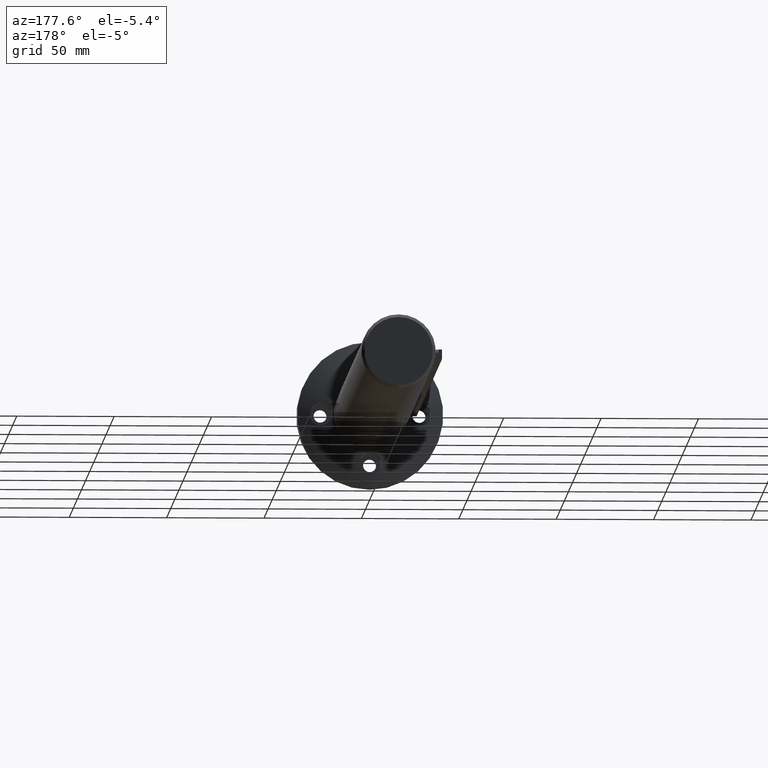
[diagram: clean part render]
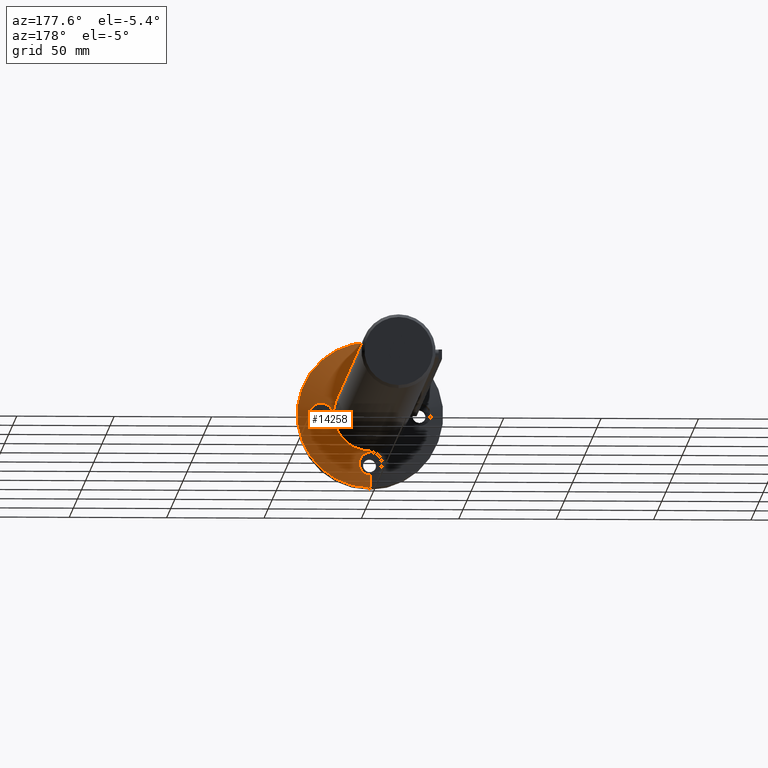
[diagram: same view with one face highlighted and labeled with its STEP entity id]
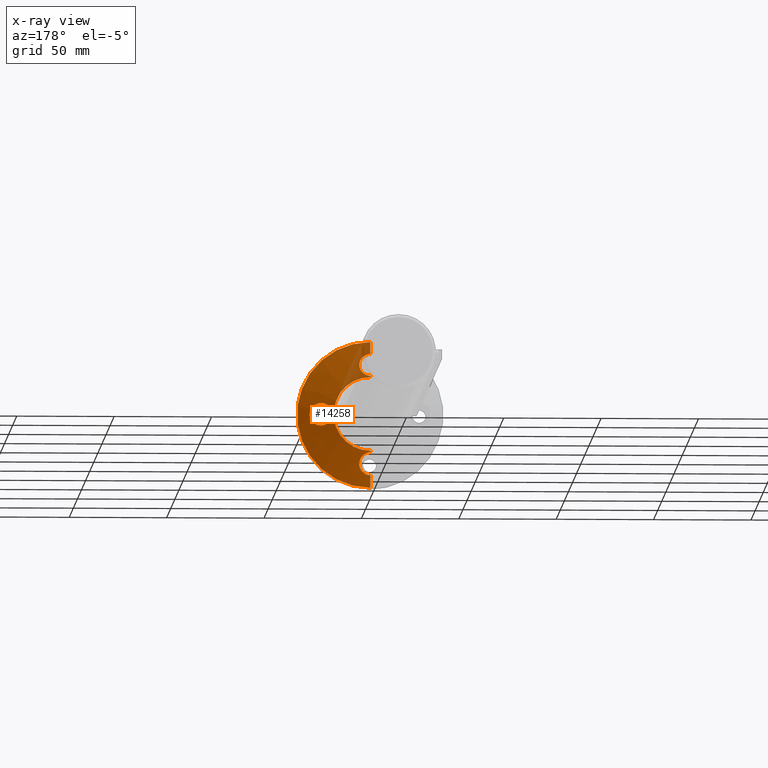
[diagram: x-ray of the same camera — body ghosted, the highlighted face saturated]
A machine part, auxiliary view. The second image highlights one B-rep face of the part: STEP entity #14258.
The next image is the same camera in x-ray: the body ghosted, the highlighted face saturated — about 9% of this face is hidden behind the body in this view.
In plain terms, the highlighted conical surface has half-angle 74.876 deg.
Its self-contained STEP definition (entity closure, byte-faithful):
#180 = CARTESIAN_POINT ( 'NONE',  ( 5.752121366705880600, 11.13348682992429200, -24.99349287536270800 ) ) ;
#495 = CARTESIAN_POINT ( 'NONE',  ( 31.11588778315874000, 9.653404444380552000, -0.7665545079161173400 ) ) ;
#557 = CARTESIAN_POINT ( 'NONE',  ( 30.37469805003396300, 9.818383659386537200, -2.917477962158198800 ) ) ;
#562 = CARTESIAN_POINT ( 'NONE',  ( 20.85786310711960200, 12.34705617384533800, 3.552988741602661500 ) ) ;
#630 = CARTESIAN_POINT ( 'NONE',  ( 19.64519202225280700, 12.75556062910140100, -0.3807822135396589100 ) ) ;
#690 = CARTESIAN_POINT ( 'NONE',  ( 24.65289151786691900, 11.22524320576565900, -5.717639886518329100 ) ) ;
#712 = EDGE_CURVE ( 'NONE', #9777, #12521, #8361, .T. ) ;
#744 = CARTESIAN_POINT ( 'NONE',  ( 23.57110559144068400, 11.52528801184982600, 5.468531129336385600 ) ) ;
#812 = CARTESIAN_POINT ( 'NONE',  ( 22.88395093715687900, 11.72381623010276800, -5.178503759099219100 ) ) ;
#949 = LINE ( 'NONE', #11947, #8793 ) ;
#1195 = DIRECTION ( 'NONE',  ( -0.0000000000000000000, -1.000000000000000000, -0.0000000000000000000 ) ) ;
#1228 = CARTESIAN_POINT ( 'NONE',  ( 5.753551299283955700, 11.08142567117042400, 25.19069178476074800 ) ) ;
#1413 = CARTESIAN_POINT ( 'NONE',  ( 2.326828918379971000E-015, 12.92990217911026100, 19.00000000000000000 ) ) ;
#1471 = DIRECTION ( 'NONE',  ( 0.0000000000000000000, 0.0000000000000000000, -1.000000000000000000 ) ) ;
#1696 = CARTESIAN_POINT ( 'NONE',  ( 5.604931779861908900, 11.38186482631871000, -24.08414015017087100 ) ) ;
#1745 = CARTESIAN_POINT ( 'NONE',  ( -1.744298769855210700E-013, 9.644937314244925700, 31.15437000000212500 ) ) ;
#1826 = CARTESIAN_POINT ( 'NONE',  ( 4.374997135130026700, 10.09696709201191600, -29.15697019807006600 ) ) ;
#1864 = EDGE_CURVE ( 'NONE', #7840, #18439, #15456, .T. ) ;
#1970 = CARTESIAN_POINT ( 'NONE',  ( 4.354389380028218100, 12.10482646065223700, -21.61961070263967200 ) ) ;
#2022 = CARTESIAN_POINT ( 'NONE',  ( 26.13812673310334100, 10.83366605880098300, 5.719024205377261100 ) ) ;
#2067 = CARTESIAN_POINT ( 'NONE',  ( 1.418599099528082900E-020, 12.75540758451566600, -19.64563000000000100 ) ) ;
#2157 = CARTESIAN_POINT ( 'NONE',  ( 21.09824536528367000, 12.26937502672081100, -3.840693119769190000 ) ) ;
#2272 = AXIS2_PLACEMENT_3D ( 'NONE', #12878, #17416, #12746 ) ;
#2297 = ORIENTED_EDGE ( 'NONE', *, *, #13890, .T. ) ;
#2339 = CARTESIAN_POINT ( 'NONE',  ( 25.39999999999990600, 11.02620744427301600, -5.754370000001026500 ) ) ;
#2818 = DIRECTION ( 'NONE',  ( 0.0000000000000000000, -0.2609090251427748100, -0.9653633930282662400 ) ) ;
#2958 = CARTESIAN_POINT ( 'NONE',  ( 2.405909194520083700E-015, 12.75540758451566600, 19.64563000000000100 ) ) ;
#3187 = CARTESIAN_POINT ( 'NONE',  ( 0.0000000000000000000, 12.92990217911026100, 0.0000000000000000000 ) ) ;
#3231 = CARTESIAN_POINT ( 'NONE',  ( 5.559856801530136400, 11.43180375883825300, -23.90492075328144800 ) ) ;
#3236 = CARTESIAN_POINT ( 'NONE',  ( 4.592425496802575200E-015, 7.929902179110256600, 37.50000000000000700 ) ) ;
#3349 = CARTESIAN_POINT ( 'NONE',  ( 27.91321917364554000, 10.39183091214263200, -5.189840867413017200 ) ) ;
#3364 = CARTESIAN_POINT ( 'NONE',  ( 1.516383248258832200, 9.689133636196436000, -30.95428067564817500 ) ) ;
#3489 = CARTESIAN_POINT ( 'NONE',  ( 25.39999999999999900, 11.02620744427304400, 5.754370000000085000 ) ) ;
#3550 = CARTESIAN_POINT ( 'NONE',  ( 30.37576376253316100, 9.818148241319129000, 2.915001988909240900 ) ) ;
#3576 = AXIS2_PLACEMENT_3D ( 'NONE', #17803, #8735, #1471 ) ;
#3615 = CARTESIAN_POINT ( 'NONE',  ( 20.24559566458732400, 12.54951331676843500, -2.586476566818950200 ) ) ;
#3675 = CARTESIAN_POINT ( 'NONE',  ( 28.87680791987174100, 10.16236954130893900, 4.600560403382208300 ) ) ;
#3677 = CARTESIAN_POINT ( 'NONE',  ( 19.96134237342280900, 12.64617442778948800, 1.889573917547891200 ) ) ;
#3733 = CARTESIAN_POINT ( 'NONE',  ( 29.94430785207256600, 9.915888250516186300, 3.535262357743014700 ) ) ;
#3802 = CARTESIAN_POINT ( 'NONE',  ( 30.77616455100281100, 9.728675268620895300, -2.060469589724757400 ) ) ;
#4163 = LINE ( 'NONE', #17742, #18247 ) ;
#4345 = CARTESIAN_POINT ( 'NONE',  ( 4.588832086139157200, 12.01156489771813400, 21.92290106165430800 ) ) ;
#4364 = EDGE_CURVE ( 'NONE', #17474, #7840, #949, .T. ) ;
#4412 = CARTESIAN_POINT ( 'NONE',  ( 4.715267445571734900, 10.20337518817701100, 28.70371138988322100 ) ) ;
#4470 = CARTESIAN_POINT ( 'NONE',  ( 5.743705289322846000, 11.13133082502850300, 25.00349460053529400 ) ) ;
#4524 = B_SPLINE_CURVE_WITH_KNOTS ( 'NONE', 3,
 ( #3489, #15750, #15884, #17343, #744, #17278, #11217, #5087, #6597, #8153, #17538, #8281, #562, #14468, #6723, #18821, #3677, #8345, #9751, #5152, #9933, #630, #11277, #12742, #5328, #3615, #15810, #19064, #2157, #18942, #12804, #14348, #17412, #812, #18999, #9809, #11461, #690, #11339, #2339 ),
 .UNSPECIFIED., .F., .F.,
 ( 4, 2, 2, 2, 2, 2, 2, 2, 2, 2, 2, 2, 2, 2, 2, 2, 2, 2, 2, 4 ),
 ( 0.02278044605392252600, 0.02392800347090952600, 0.02507556088789652700, 0.02564933959639002400, 0.02622311830488351800, 0.02737067572187051200, 0.02851823313885750600, 0.02966579055584450000, 0.03023956926433799700, 0.03081334797283149000, 0.03196090538981848800, 0.03310846280680548200, 0.03425602022379248300, 0.03540357764077947700, 0.03655113505776647100, 0.03769869247475346500, 0.03827247118324696200, 0.03884624989174045900, 0.03999380730872746000, 0.04114136472571445400 ),
 .UNSPECIFIED. ) ;
#4541 = CARTESIAN_POINT ( 'NONE',  ( 4.366142320094994900, 10.09805049839781800, 29.15304463863521500 ) ) ;
#4560 = CARTESIAN_POINT ( 'NONE',  ( 3.459627207591272700E-015, 12.92990217911026100, 19.00000000000000000 ) ) ;
#4596 = EDGE_CURVE ( 'NONE', #14779, #11967, #16382, .T. ) ;
#4752 = CARTESIAN_POINT ( 'NONE',  ( 4.603152755962620200, 10.16700010147501500, 28.85825498252901500 ) ) ;
#4768 = CARTESIAN_POINT ( 'NONE',  ( 5.388703683395808000, 11.58232158542044500, -23.37291869454105300 ) ) ;
#4827 = CARTESIAN_POINT ( 'NONE',  ( 4.615151457810871000, 10.16690945185796100, -28.85746276620313500 ) ) ;
#4883 = CARTESIAN_POINT ( 'NONE',  ( 28.71396885806361600, 10.20095552578496100, -4.708045767680188100 ) ) ;
#4898 = CARTESIAN_POINT ( 'NONE',  ( 0.3827297659195221800, 9.644937314245398200, -31.15437000000000000 ) ) ;
#5048 = EDGE_CURVE ( 'NONE', #11967, #14779, #4524, .T. ) ;
#5087 = CARTESIAN_POINT ( 'NONE',  ( 22.55786220425960300, 11.81995318017262300, 5.006989748951079700 ) ) ;
#5146 = CARTESIAN_POINT ( 'NONE',  ( 30.96605568270820500, 9.686518680858100100, 1.508837570871810700 ) ) ;
#5152 = CARTESIAN_POINT ( 'NONE',  ( 19.68569039984744900, 12.74136161533699700, 0.7778462264573586800 ) ) ;
#5162 = CARTESIAN_POINT ( 'NONE',  ( 0.7637268076666595700, 12.74212480314451700, -19.68349969016582100 ) ) ;
#5266 = CARTESIAN_POINT ( 'NONE',  ( 25.76787959193202600, 10.92923786837081600, 5.754370000000085900 ) ) ;
#5327 = CARTESIAN_POINT ( 'NONE',  ( 27.91411718648641500, 10.39161349364256600, 5.189416341458581900 ) ) ;
#5328 = CARTESIAN_POINT ( 'NONE',  ( 19.94974408141540700, 12.64994938104479900, -1.884795879016688300 ) ) ;
#5614 = VERTEX_POINT ( 'NONE', #10992 ) ;
#5736 = CARTESIAN_POINT ( 'NONE',  ( 5.463303028152002300, 11.52984146627808000, 23.55502764150032000 ) ) ;
#5797 = CARTESIAN_POINT ( 'NONE',  ( 3.831969168777085600, 12.27180134890388200, 21.09070205042166200 ) ) ;
#5863 = CARTESIAN_POINT ( 'NONE',  ( 5.196475428612324700, 10.39509998621983300, 27.89968142912265500 ) ) ;
#6035 = CARTESIAN_POINT ( 'NONE',  ( 25.39999999999999900, 11.02620744427304400, 5.754370000000085000 ) ) ;
#6065 = CARTESIAN_POINT ( 'NONE',  ( 0.7629376636027661600, 9.653275954632384500, 31.11647002445025500 ) ) ;
#6189 = CARTESIAN_POINT ( 'NONE',  ( 2.061286351244369500, 9.728740033451673600, 30.77587299745846400 ) ) ;
#6204 = CARTESIAN_POINT ( 'NONE',  ( 0.7626891619676300400, 9.653254715527754800, -31.11656585892411200 ) ) ;
#6252 = VECTOR ( 'NONE', #15060, 1000.000000000000200 ) ;
#6323 = CARTESIAN_POINT ( 'NONE',  ( 26.13580775322017800, 10.83426989322429500, -5.719134057493517000 ) ) ;
#6413 = CARTESIAN_POINT ( 'NONE',  ( 2.918569921876603200, 9.821139681024144300, -30.36297610525032900 ) ) ;
#6475 = CARTESIAN_POINT ( 'NONE',  ( 3.542777957476192600, 12.34965837421010600, -20.84984942059240300 ) ) ;
#6597 = CARTESIAN_POINT ( 'NONE',  ( 22.39555860504234600, 11.86837355021825300, 4.911300312168947400 ) ) ;
#6723 = CARTESIAN_POINT ( 'NONE',  ( 20.25194156850737300, 12.54737495948222700, 2.599301245862750200 ) ) ;
#6846 = CARTESIAN_POINT ( 'NONE',  ( 25.39999999999999900, 11.02620744427304400, 5.754370000000085000 ) ) ;
#6977 = LINE ( 'NONE', #1413, #6252 ) ;
#7388 = VERTEX_POINT ( 'NONE', #12713 ) ;
#7401 = CARTESIAN_POINT ( 'NONE',  ( 5.678492896228520200, 11.28090940280700500, 24.45053517608814200 ) ) ;
#7534 = CARTESIAN_POINT ( 'NONE',  ( 1.519915458604107900, 12.68902331284816200, 19.83660390025502800 ) ) ;
#7542 = CONICAL_SURFACE ( 'NONE', #3576, 19.00000000000000000, 1.306832603169191900 ) ;
#7754 = CARTESIAN_POINT ( 'NONE',  ( 0.0000000000000000000, 7.929902179110256600, -37.50000000000000700 ) ) ;
#7755 = CARTESIAN_POINT ( 'NONE',  ( 1.882329432511733200, 9.714227552441469600, -30.84116604111460800 ) ) ;
#7801 = CARTESIAN_POINT ( 'NONE',  ( 2.586750806382119600, 9.778168614670022400, 30.55422599441480000 ) ) ;
#7821 = CARTESIAN_POINT ( 'NONE',  ( 5.618431121022335400, 10.70215365557208300, -26.65710857349963400 ) ) ;
#7840 = VERTEX_POINT ( 'NONE', #7754 ) ;
#8031 = CARTESIAN_POINT ( 'NONE',  ( 4.593425154492671000, 12.01367498575086200, -21.91420880135425300 ) ) ;
#8035 = CARTESIAN_POINT ( 'NONE',  ( 0.0000000000000000000, 12.92990217911026100, -19.00000000000000000 ) ) ;
#8093 = EDGE_CURVE ( 'NONE', #9777, #19630, #4163, .T. ) ;
#8105 = CARTESIAN_POINT ( 'NONE',  ( 5.176082324360686800, 11.73064526284862400, -22.85862369841067500 ) ) ;
#8149 = CARTESIAN_POINT ( 'NONE',  ( 30.55536361386015500, 9.777914415175434500, -2.584303495479381300 ) ) ;
#8153 = CARTESIAN_POINT ( 'NONE',  ( 21.92810453150271100, 12.00940585604769200, 4.604104144489886300 ) ) ;
#8281 = CARTESIAN_POINT ( 'NONE',  ( 21.10403380132936800, 12.26753526411979700, 3.846759757926757400 ) ) ;
#8291 = CARTESIAN_POINT ( 'NONE',  ( 2.910848644392458200, 12.48713210177821700, -20.43251931426650400 ) ) ;
#8345 = CARTESIAN_POINT ( 'NONE',  ( 19.84769302206631300, 12.68522764826402800, 1.523605458047557500 ) ) ;
#8361 = CIRCLE ( 'NONE', #10828, 19.00000000000000000 ) ;
#8735 = DIRECTION ( 'NONE',  ( -0.0000000000000000000, -1.000000000000000000, -0.0000000000000000000 ) ) ;
#8778 = DIRECTION ( 'NONE',  ( 0.0000000000000000000, 0.0000000000000000000, -1.000000000000000000 ) ) ;
#8793 = VECTOR ( 'NONE', #2818, 1000.000000000000200 ) ;
#8819 = CARTESIAN_POINT ( 'NONE',  ( 2.582555406658090900, 12.55014178920008000, 20.24373405290141300 ) ) ;
#8878 = CARTESIAN_POINT ( 'NONE',  ( 5.721855434215871000, 10.83964861831112000, 26.11483538981045900 ) ) ;
#9081 = CARTESIAN_POINT ( 'NONE',  ( 1.883329402372250200, 12.65009155575980100, 19.94933570031799900 ) ) ;
#9236 = CARTESIAN_POINT ( 'NONE',  ( 5.722263152997632200, 10.84059559840060900, -26.11115611935780500 ) ) ;
#9287 = CARTESIAN_POINT ( 'NONE',  ( 0.3832061127217694100, 9.644937314245391100, 31.15437000000001800 ) ) ;
#9310 = ORIENTED_EDGE ( 'NONE', *, *, #1864, .F. ) ;
#9422 = CARTESIAN_POINT ( 'NONE',  ( 27.22520119892902800, 10.56003616783411100, -5.469859178011612100 ) ) ;
#9437 = CARTESIAN_POINT ( 'NONE',  ( 3.556799857339485400, 9.916861921944052600, -29.93959944066552100 ) ) ;
#9505 = CARTESIAN_POINT ( 'NONE',  ( 3.459352284620442000E-024, 9.644937314245396500, -31.15436999999999700 ) ) ;
#9618 = CARTESIAN_POINT ( 'NONE',  ( 30.84133734311570100, 9.714189513882388400, -1.881816607613388400 ) ) ;
#9675 = B_SPLINE_CURVE_WITH_KNOTS ( 'NONE', 3,
 ( #9505, #4898, #6204, #14095, #3364, #7755, #12424, #13957, #6413, #18431, #9437, #10970, #1826, #4827, #15498, #12492, #17085, #18375, #16950, #7821, #9236, #10767, #180, #10835, #1696, #3231, #13884, #4768, #8105, #11288, #8031, #1970, #15630, #6475, #17156, #8291, #18833, #11100, #14158, #11348, #5162, #17422, #17223 ),
 .UNSPECIFIED., .F., .F.,
 ( 4, 2, 2, 1, 2, 2, 2, 2, 2, 2, 2, 2, 2, 2, 2, 2, 2, 2, 2, 2, 2, 4 ),
 ( 0.004383320594555911900, 0.005528662057133264400, 0.006101332788421939800, 0.006674003519710616100, 0.007246674250999291500, 0.007819344982287966900, 0.008964686444865317700, 0.01011002790744267000, 0.01125536937002002300, 0.01182804010130869600, 0.01240071083259736800, 0.01354605229517471400, 0.01469139375775206000, 0.01526406448904073600, 0.01583673522032941600, 0.01698207668290677200, 0.01812741814548412800, 0.01927275960806148400, 0.01984543033935016000, 0.02041810107063884000, 0.02156344253321619200, 0.02270878399579354500 ),
 .UNSPECIFIED. ) ;
#9746 = CARTESIAN_POINT ( 'NONE',  ( 30.95432655719664400, 9.689123493740075000, -1.516193365733777600 ) ) ;
#9751 = CARTESIAN_POINT ( 'NONE',  ( 19.80024791814572900, 12.70163449744713300, 1.338638089270752600 ) ) ;
#9777 = VERTEX_POINT ( 'NONE', #8035 ) ;
#9805 = CARTESIAN_POINT ( 'NONE',  ( 29.94443034411515100, 9.915762139245247300, -3.550697283094648200 ) ) ;
#9809 = CARTESIAN_POINT ( 'NONE',  ( 23.57271606710852700, 11.52481850080580000, -5.469282654268667400 ) ) ;
#9933 = CARTESIAN_POINT ( 'NONE',  ( 19.64607546109354200, 12.75525192498935400, 0.3939065313766372300 ) ) ;
#10166 = ORIENTED_EDGE ( 'NONE', *, *, #4364, .F. ) ;
#10352 = CARTESIAN_POINT ( 'NONE',  ( 5.706112134548990700, 11.23107650024867800, 24.63341582957077600 ) ) ;
#10423 = CARTESIAN_POINT ( 'NONE',  ( 5.569856439610639100, 11.43032502770621400, 23.90821011905527300 ) ) ;
#10687 = CARTESIAN_POINT ( 'NONE',  ( 3.845678477573100100, 9.972172213893456300, 29.69711924072606400 ) ) ;
#10739 = EDGE_LOOP ( 'NONE', ( #15898, #15401 ) ) ;
#10767 = CARTESIAN_POINT ( 'NONE',  ( 5.756427258249742900, 10.93643336179156700, -25.74013744306464000 ) ) ;
#10828 = AXIS2_PLACEMENT_3D ( 'NONE', #3187, #1195, #8778 ) ;
#10835 = CARTESIAN_POINT ( 'NONE',  ( 5.714013187186281200, 11.23248401732650400, -24.62622961341582300 ) ) ;
#10888 = CARTESIAN_POINT ( 'NONE',  ( 25.76933968437572600, 10.92885300183256100, -5.754369999999918900 ) ) ;
#10891 = CARTESIAN_POINT ( 'NONE',  ( 3.556054798216884200, 9.916695612630825000, 29.94032512079406800 ) ) ;
#10970 = CARTESIAN_POINT ( 'NONE',  ( 3.846397090533475400, 9.972292590159824500, -29.69658636867898200 ) ) ;
#10992 = CARTESIAN_POINT ( 'NONE',  ( -1.744298769855210700E-013, 9.644937314244925700, 31.15437000000212500 ) ) ;
#11084 = CARTESIAN_POINT ( 'NONE',  ( 28.86776674736846400, 10.16476684663340400, -4.595959456759913100 ) ) ;
#11100 = CARTESIAN_POINT ( 'NONE',  ( 2.405966436433157000, 12.57540015032025600, -20.16933400388826300 ) ) ;
#11148 = CARTESIAN_POINT ( 'NONE',  ( 31.15477153300126600, 9.644848836448339600, 0.3759481918301732000 ) ) ;
#11217 = CARTESIAN_POINT ( 'NONE',  ( 22.88870203331299500, 11.72242462786660700, 5.180837395498056900 ) ) ;
#11277 = CARTESIAN_POINT ( 'NONE',  ( 19.68346964902312700, 12.74213685738475200, -0.7619515647635876100 ) ) ;
#11288 = CARTESIAN_POINT ( 'NONE',  ( 5.002851577061391300, 11.82694380676338000, -22.53263692072724600 ) ) ;
#11339 = CARTESIAN_POINT ( 'NONE',  ( 25.02839460667090100, 11.12415910613301600, -5.754369999999896700 ) ) ;
#11348 = CARTESIAN_POINT ( 'NONE',  ( 1.520080146460526900, 12.68901192089578900, -19.83663673867870300 ) ) ;
#11461 = CARTESIAN_POINT ( 'NONE',  ( 23.92704785584944800, 11.42505478727960100, -5.574942953701217600 ) ) ;
#11472 = DIRECTION ( 'NONE',  ( 0.0000000000000000000, -0.2609090251427748100, -0.9653633930282662400 ) ) ;
#11880 = CARTESIAN_POINT ( 'NONE',  ( 5.755858891728379900, 10.93465416568426100, 25.74701016937914800 ) ) ;
#11909 = CARTESIAN_POINT ( 'NONE',  ( 25.39999999999990600, 11.02620744427301600, -5.754370000001026500 ) ) ;
#11947 = CARTESIAN_POINT ( 'NONE',  ( 0.0000000000000000000, 12.92990217911026100, -19.00000000000000000 ) ) ;
#11967 = VERTEX_POINT ( 'NONE', #6035 ) ;
#12018 = CARTESIAN_POINT ( 'NONE',  ( 5.024214615886843500, 10.31557790060765000, 28.23054223188154700 ) ) ;
#12083 = CARTESIAN_POINT ( 'NONE',  ( 4.698521126071476300, 11.96581269178658100, 22.07269398497668800 ) ) ;
#12185 = LINE ( 'NONE', #15698, #19356 ) ;
#12342 = CARTESIAN_POINT ( 'NONE',  ( 4.240958653723675200, 10.06532870767407000, 29.29390157175959400 ) ) ;
#12424 = CARTESIAN_POINT ( 'NONE',  ( 2.240491122677629400, 9.743271719753968400, -30.71049413669735300 ) ) ;
#12492 = CARTESIAN_POINT ( 'NONE',  ( 5.197859524760091600, 10.39569234867985900, -27.89720285057316900 ) ) ;
#12521 = VERTEX_POINT ( 'NONE', #4560 ) ;
#12657 = ORIENTED_EDGE ( 'NONE', *, *, #15625, .T. ) ;
#12713 = CARTESIAN_POINT ( 'NONE',  ( 2.405909194520083700E-015, 12.75540758451566600, 19.64563000000000100 ) ) ;
#12742 = CARTESIAN_POINT ( 'NONE',  ( 19.83475659930360600, 12.68966239956519500, -1.512400519601380300 ) ) ;
#12746 = DIRECTION ( 'NONE',  ( 0.0000000000000000000, 0.0000000000000000000, -1.000000000000000000 ) ) ;
#12800 = CARTESIAN_POINT ( 'NONE',  ( 30.85470084763570500, 9.711164633352536800, 1.872576133252570300 ) ) ;
#12804 = CARTESIAN_POINT ( 'NONE',  ( 21.92983471653959200, 12.00888346295282000, -4.605249034156424100 ) ) ;
#12869 = CARTESIAN_POINT ( 'NONE',  ( 29.70141800272306300, 9.971377454440753900, 3.827089881141159100 ) ) ;
#12878 = CARTESIAN_POINT ( 'NONE',  ( 0.0000000000000000000, 7.929902179110256600, 0.0000000000000000000 ) ) ;
#12926 = CARTESIAN_POINT ( 'NONE',  ( 31.11626955824193500, 9.653320557794495800, 0.7627771730977972500 ) ) ;
#13508 = EDGE_LOOP ( 'NONE', ( #19618, #16282, #2297, #17784, #9310, #10166, #12657, #18071 ) ) ;
#13600 = CARTESIAN_POINT ( 'NONE',  ( 5.179755635336210400, 11.72851142934511900, 22.86588584723466500 ) ) ;
#13742 = CARTESIAN_POINT ( 'NONE',  ( 1.515465802685932900, 9.689075418699571800, 30.95454336544954900 ) ) ;
#13871 = CARTESIAN_POINT ( 'NONE',  ( 25.39999999999990600, 11.02620744427301600, -5.754370000001026500 ) ) ;
#13884 = CARTESIAN_POINT ( 'NONE',  ( 5.451874038685374100, 11.53197330150189400, -23.54950301978148300 ) ) ;
#13890 = EDGE_CURVE ( 'NONE', #7388, #5614, #14316, .T. ) ;
#13957 = CARTESIAN_POINT ( 'NONE',  ( 2.583385861185477400, 9.780181697467288200, -30.54541540620340700 ) ) ;
#14004 = CARTESIAN_POINT ( 'NONE',  ( 28.24264163360680200, 10.31268465347930900, -5.017310477071871100 ) ) ;
#14095 = CARTESIAN_POINT ( 'NONE',  ( 1.328404229678010100, 9.678521236867457100, -31.00224310161103200 ) ) ;
#14158 = CARTESIAN_POINT ( 'NONE',  ( 1.883004475801746300, 12.65010556683155800, -19.94929941402939700 ) ) ;
#14209 = CARTESIAN_POINT ( 'NONE',  ( 29.57185777167368500, 10.00112003578779800, 3.967874732949991000 ) ) ;
#14258 = ADVANCED_FACE ( 'NONE', ( #17579, #19497 ), #7542, .T. ) ;
#14316 = B_SPLINE_CURVE_WITH_KNOTS ( 'NONE', 3,
 ( #2958, #19688, #16421, #7534, #9081, #8819, #15006, #18014, #5797, #19619, #19493, #4345, #12083, #19751, #13600, #5736, #10423, #7401, #10352, #4470, #1228, #11880, #8878, #19560, #16550, #5863, #12018, #4412, #4752, #4541, #12342, #10687, #10891, #18553, #7801, #6189, #15415, #13742, #18487, #6065, #9287, #1745 ),
 .UNSPECIFIED., .F., .F.,
 ( 4, 2, 2, 2, 2, 2, 2, 2, 2, 2, 2, 2, 2, 2, 2, 2, 2, 2, 2, 2, 4 ),
 ( 0.004655710606259378200, 0.005801008610645208700, 0.006946306615031039300, 0.008091604619416870700, 0.009236902623802700400, 0.009809551625995616100, 0.01038220062818853200, 0.01152749863257436800, 0.01267279663696020700, 0.01324544563915312400, 0.01381809464134604300, 0.01496339264573187300, 0.01610869065011769800, 0.01725398865450352900, 0.01782663765669645000, 0.01839928665888936700, 0.01954458466327520600, 0.02068988266766103700, 0.02126253166985395800, 0.02183518067204687200, 0.02298047867643270700 ),
 .UNSPECIFIED. ) ;
#14348 = CARTESIAN_POINT ( 'NONE',  ( 22.39482136848150900, 11.86859617231779200, -4.910811888641437600 ) ) ;
#14408 = CARTESIAN_POINT ( 'NONE',  ( 29.16821878460525900, 10.09434972161848500, 4.365307956430384300 ) ) ;
#14465 = CARTESIAN_POINT ( 'NONE',  ( 27.22587025329337600, 10.55987047771915100, 5.469645784739829400 ) ) ;
#14468 = CARTESIAN_POINT ( 'NONE',  ( 20.43335127048246800, 12.48650200305840100, 2.930381707082245800 ) ) ;
#14779 = VERTEX_POINT ( 'NONE', #11909 ) ;
#15006 = CARTESIAN_POINT ( 'NONE',  ( 2.921061323749838000, 12.48832721373766800, 20.42787132225963000 ) ) ;
#15060 = DIRECTION ( 'NONE',  ( 1.182229189286094700E-016, -0.2609090251427748100, 0.9653633930282662400 ) ) ;
#15401 = ORIENTED_EDGE ( 'NONE', *, *, #4596, .T. ) ;
#15415 = CARTESIAN_POINT ( 'NONE',  ( 1.882104664321519100, 9.714207459863560600, 30.84125634668219000 ) ) ;
#15456 = CIRCLE ( 'NONE', #2272, 37.50000000000000000 ) ;
#15498 = CARTESIAN_POINT ( 'NONE',  ( 5.025198534205344500, 10.31604208134295500, -28.22861299050174800 ) ) ;
#15543 = CARTESIAN_POINT ( 'NONE',  ( 29.16088777019110300, 10.09622506206724800, -4.359354622230490000 ) ) ;
#15625 = EDGE_CURVE ( 'NONE', #17474, #19630, #9675, .T. ) ;
#15630 = CARTESIAN_POINT ( 'NONE',  ( 3.829615724683312000, 12.27240703475981900, -21.08884081553959100 ) ) ;
#15698 = CARTESIAN_POINT ( 'NONE',  ( 2.326828918379971000E-015, 12.92990217911026100, 19.00000000000000000 ) ) ;
#15746 = CARTESIAN_POINT ( 'NONE',  ( 31.00212926718932100, 9.678546462339936000, -1.328711024712720500 ) ) ;
#15750 = CARTESIAN_POINT ( 'NONE',  ( 25.02986365603095800, 11.12377187863642700, 5.754370000000084100 ) ) ;
#15806 = CARTESIAN_POINT ( 'NONE',  ( 30.05794271654153600, 9.890069141950901300, 3.384082686055982100 ) ) ;
#15810 = CARTESIAN_POINT ( 'NONE',  ( 20.42649374595171400, 12.48877617987332100, -2.919222646247845900 ) ) ;
#15884 = CARTESIAN_POINT ( 'NONE',  ( 24.65762243112689200, 11.22394711968102300, 5.718467727864740400 ) ) ;
#15898 = ORIENTED_EDGE ( 'NONE', *, *, #5048, .T. ) ;
#16003 = CARTESIAN_POINT ( 'NONE',  ( 26.87069442530888700, 10.64809071643297700, 5.575762445009485400 ) ) ;
#16019 = EDGE_CURVE ( 'NONE', #12521, #7388, #6977, .T. ) ;
#16282 = ORIENTED_EDGE ( 'NONE', *, *, #16019, .T. ) ;
#16382 = B_SPLINE_CURVE_WITH_KNOTS ( 'NONE', 3,
 ( #13871, #10888, #6323, #18552, #9422, #3349, #14004, #4883, #11084, #15543, #17072, #17340, #9805, #557, #8149, #3802, #9618, #9746, #15746, #495, #18751, #11148, #12926, #5146, #12800, #17275, #3550, #15806, #3733, #12869, #14209, #14408, #3675, #18817, #5327, #14465, #16003, #2022, #5266, #6846 ),
 .UNSPECIFIED., .F., .F.,
 ( 4, 2, 2, 2, 2, 2, 2, 2, 2, 2, 2, 2, 2, 2, 2, 2, 2, 2, 2, 4 ),
 ( 0.004531475428544475200, 0.005672036092630599500, 0.006812596756716723800, 0.007953157420802848100, 0.008523437752845908900, 0.009093718084888971500, 0.01023427874897510200, 0.01137483941306123200, 0.01194511974510429800, 0.01251540007714736400, 0.01365596074123348900, 0.01479652140531961800, 0.01593708206940574700, 0.01707764273349187500, 0.01764792306553493800, 0.01821820339757800400, 0.01935876406166413600, 0.02049932472575026500, 0.02163988538983639700, 0.02278044605392252600 ),
 .UNSPECIFIED. ) ;
#16421 = CARTESIAN_POINT ( 'NONE',  ( 0.7639059866806500200, 12.74211239358618300, 19.68353546258922600 ) ) ;
#16550 = CARTESIAN_POINT ( 'NONE',  ( 5.475578078674723200, 10.56422004335021500, 27.20826127304906800 ) ) ;
#16950 = CARTESIAN_POINT ( 'NONE',  ( 5.574999495032024300, 10.65679325842037700, -26.83770991055252600 ) ) ;
#17072 = CARTESIAN_POINT ( 'NONE',  ( 29.30099873489455200, 10.06368345740757600, -4.234402395697459900 ) ) ;
#17085 = CARTESIAN_POINT ( 'NONE',  ( 5.408189887679686300, 10.52351258002658500, -27.37471621771002400 ) ) ;
#17156 = CARTESIAN_POINT ( 'NONE',  ( 3.074403521217832700, 12.45407906484480300, -20.53210414560726000 ) ) ;
#17223 = CARTESIAN_POINT ( 'NONE',  ( 1.418599099528082900E-020, 12.75540758451566600, -19.64563000000000100 ) ) ;
#17228 = DIRECTION ( 'NONE',  ( 1.182229189286094700E-016, -0.2609090251427748100, 0.9653633930282662400 ) ) ;
#17275 = CARTESIAN_POINT ( 'NONE',  ( 30.55743755166052000, 9.777448845329574900, 2.580918559882681600 ) ) ;
#17278 = CARTESIAN_POINT ( 'NONE',  ( 23.05711682261686900, 11.67334454229832600, 5.259077947450098400 ) ) ;
#17301 = EDGE_CURVE ( 'NONE', #5614, #18439, #12185, .T. ) ;
#17340 = CARTESIAN_POINT ( 'NONE',  ( 29.70220285904034800, 9.971009289151092900, -3.839862937959775700 ) ) ;
#17343 = CARTESIAN_POINT ( 'NONE',  ( 23.92534662606523500, 11.42551688231063500, 5.574710309616029300 ) ) ;
#17412 = CARTESIAN_POINT ( 'NONE',  ( 22.55462143941730700, 11.82091772589246000, -5.005119870354242600 ) ) ;
#17416 = DIRECTION ( 'NONE',  ( -0.0000000000000000000, -1.000000000000000000, -0.0000000000000000000 ) ) ;
#17422 = CARTESIAN_POINT ( 'NONE',  ( 0.3817803002494075100, 12.75540758451566400, -19.64563000000000400 ) ) ;
#17474 = VERTEX_POINT ( 'NONE', #19012 ) ;
#17538 = CARTESIAN_POINT ( 'NONE',  ( 21.63858261230212000, 12.09891625603582600, 4.370883829484545100 ) ) ;
#17579 = FACE_BOUND ( 'NONE', #10739, .T. ) ;
#17742 = CARTESIAN_POINT ( 'NONE',  ( 0.0000000000000000000, 12.92990217911026100, -19.00000000000000000 ) ) ;
#17784 = ORIENTED_EDGE ( 'NONE', *, *, #17301, .T. ) ;
#17803 = CARTESIAN_POINT ( 'NONE',  ( 0.0000000000000000000, 12.92990217911026100, 0.0000000000000000000 ) ) ;
#18014 = CARTESIAN_POINT ( 'NONE',  ( 3.544308492321202000, 12.34925510890415300, 20.85109461998000700 ) ) ;
#18071 = ORIENTED_EDGE ( 'NONE', *, *, #8093, .F. ) ;
#18247 = VECTOR ( 'NONE', #11472, 1000.000000000000200 ) ;
#18375 = CARTESIAN_POINT ( 'NONE',  ( 5.470082977138734900, 10.56758356502189700, -27.19605717607355500 ) ) ;
#18431 = CARTESIAN_POINT ( 'NONE',  ( 3.083185086937992200, 9.843788612753629200, -30.26243224827590300 ) ) ;
#18439 = VERTEX_POINT ( 'NONE', #3236 ) ;
#18487 = CARTESIAN_POINT ( 'NONE',  ( 1.327295278885654900, 9.678466650937160400, 31.00248995269674500 ) ) ;
#18552 = CARTESIAN_POINT ( 'NONE',  ( 26.86279764230526000, 10.65007498575376800, -5.577645603204580000 ) ) ;
#18553 = CARTESIAN_POINT ( 'NONE',  ( 2.921582473107528600, 9.818906907912097600, 30.37236702016918200 ) ) ;
#18751 = CARTESIAN_POINT ( 'NONE',  ( 31.15396200793470200, 9.645027215297158600, -0.3881412774055312800 ) ) ;
#18817 = CARTESIAN_POINT ( 'NONE',  ( 28.25043528196923900, 10.31082211687620100, 5.012820367832485000 ) ) ;
#18821 = CARTESIAN_POINT ( 'NONE',  ( 20.02801655143745300, 12.62336975972133100, 2.071495244080176200 ) ) ;
#18833 = CARTESIAN_POINT ( 'NONE',  ( 2.576687982095918500, 12.54775543982109200, -20.25125420741913400 ) ) ;
#18942 = CARTESIAN_POINT ( 'NONE',  ( 21.63834360354625400, 12.09897795479772500, -4.371036230982801900 ) ) ;
#18999 = CARTESIAN_POINT ( 'NONE',  ( 23.05441878850929500, 11.67412454077882900, -5.257930598999893200 ) ) ;
#19012 = CARTESIAN_POINT ( 'NONE',  ( 3.459352284620442000E-024, 9.644937314245396500, -31.15436999999999700 ) ) ;
#19064 = CARTESIAN_POINT ( 'NONE',  ( 20.85428936148299800, 12.34820903408227700, -3.548822355133731700 ) ) ;
#19356 = VECTOR ( 'NONE', #17228, 1000.000000000000200 ) ;
#19493 = CARTESIAN_POINT ( 'NONE',  ( 4.353909416767798700, 12.10111268783162700, 21.63289637355092400 ) ) ;
#19497 = FACE_OUTER_BOUND ( 'NONE', #13508, .T. ) ;
#19560 = CARTESIAN_POINT ( 'NONE',  ( 5.582553194963098900, 10.65472493306997300, 26.84420187993177700 ) ) ;
#19618 = ORIENTED_EDGE ( 'NONE', *, *, #712, .T. ) ;
#19619 = CARTESIAN_POINT ( 'NONE',  ( 4.227953753606744400, 12.14512767704566300, 21.49199580831708500 ) ) ;
#19630 = VERTEX_POINT ( 'NONE', #2067 ) ;
#19688 = CARTESIAN_POINT ( 'NONE',  ( 0.3817597465990570900, 12.75540758451566400, 19.64563000000001100 ) ) ;
#19751 = CARTESIAN_POINT ( 'NONE',  ( 5.004833764897254500, 11.82589744661427000, 22.53615973663848500 ) ) ;